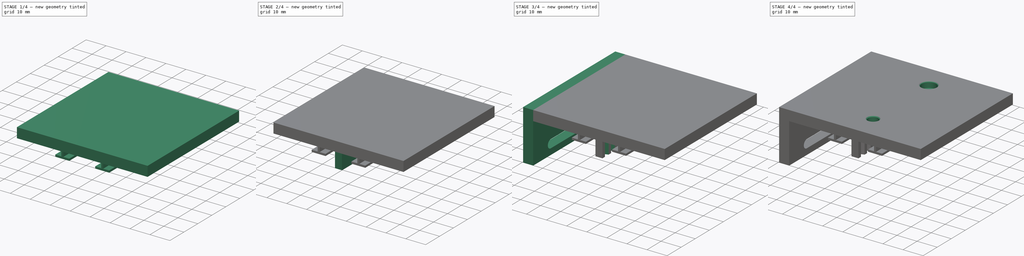
[diagram: build sequence overview — one tinted view per stage of 4, left to right]
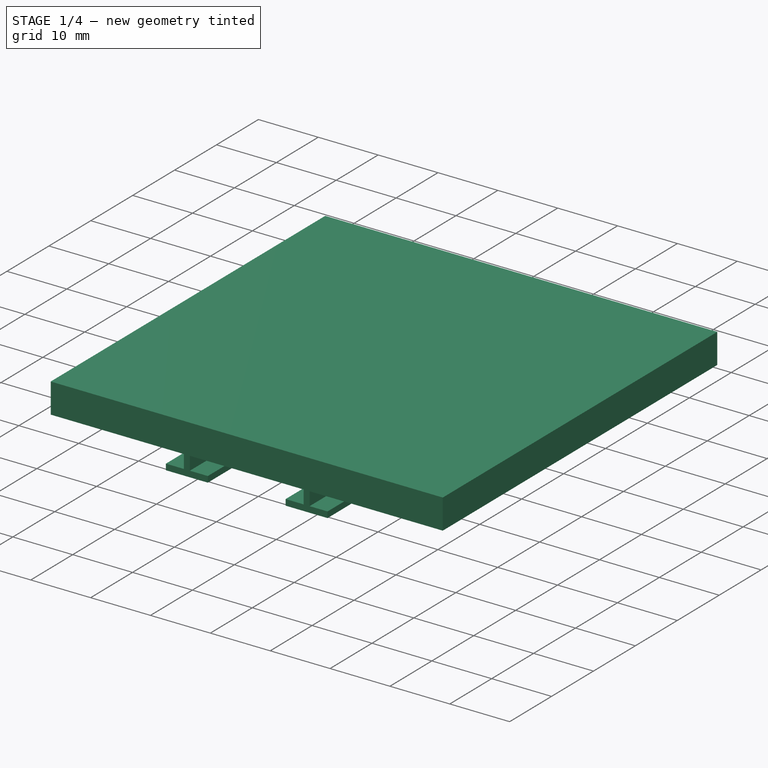
[diagram: stage 1 of 4 — iso view after this stage's code; geometry added in this stage tinted green]
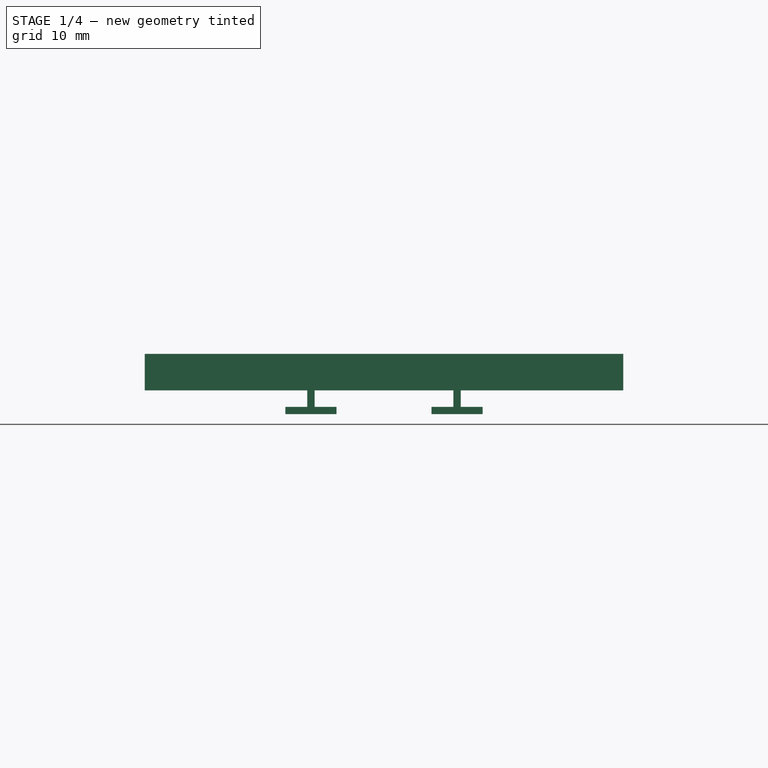
[diagram: stage 1 of 4 — front view after this stage's code; geometry added in this stage tinted green]
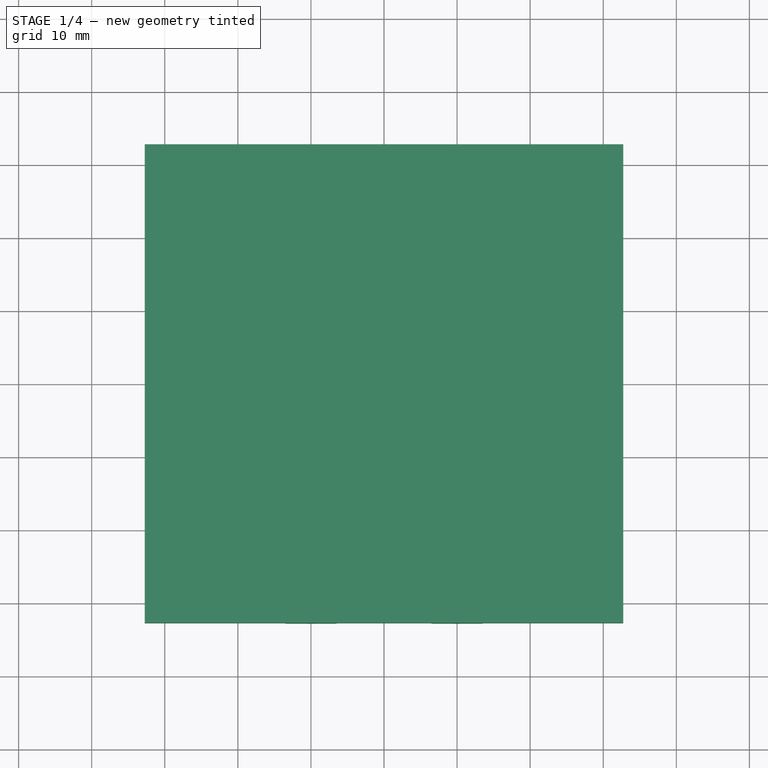
[diagram: stage 1 of 4 — top view after this stage's code; geometry added in this stage tinted green]
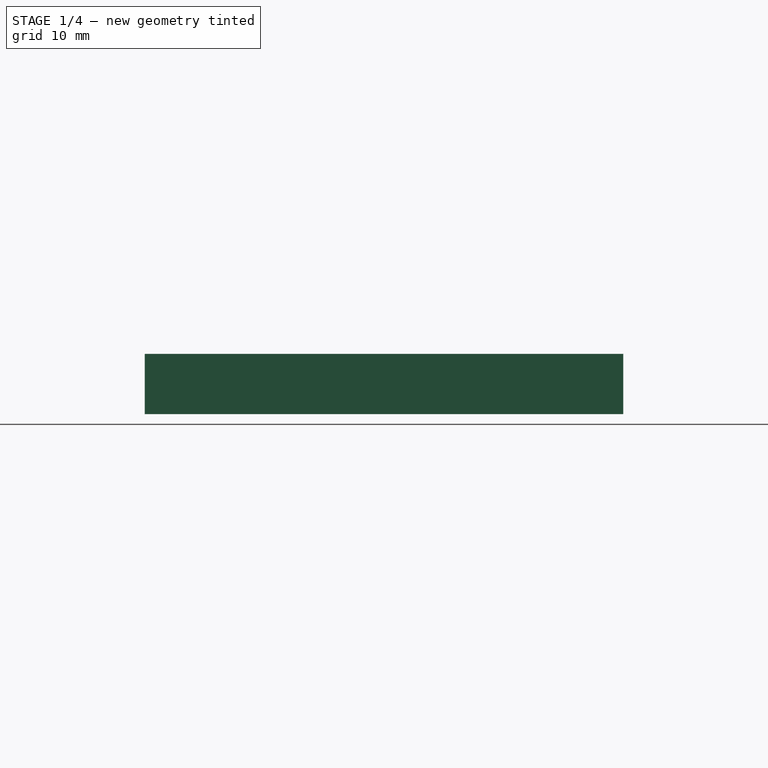
[diagram: stage 1 of 4 — right view after this stage's code; geometry added in this stage tinted green]
FCSTD DOCUMENT  (FreeCAD 0.20R29410 (Git))
Label: Top10mmAdjRevD
License: All rights reserved
LicenseURL: http://en.wikipedia.org/wiki/All_rights_reserved
objects: Sketcher::SketchObject×8, PartDesign::Pad×4, PartDesign::Pocket×3, PartDesign::LinearPattern×1, PartDesign::Chamfer×1, PartDesign::Body×1
note: 26 computed .brp shape members not serialized (recipe doc carries the construction recipe); baked Part::Feature solids carry a one-line shape summary decoded from their .brp

FEATURE [Sketcher::SketchObject] Sketch
  FullyConstrained = true
  MapMode = 5
  Support = -> [XY_Plane]
  sketch-geometry (4):
    g0: LineSegment StartX=-32.75 StartY=32.75 StartZ=0 EndX=32.75 EndY=32.75 EndZ=0
    g1: LineSegment StartX=32.75 StartY=32.75 StartZ=0 EndX=32.75 EndY=-32.75 EndZ=0
    g2: LineSegment StartX=32.75 StartY=-32.75 StartZ=0 EndX=-32.75 EndY=-32.75 EndZ=0
    g3: LineSegment StartX=-32.75 StartY=-32.75 StartZ=0 EndX=-32.75 EndY=32.75 EndZ=0
  constraints (11):
    c: Coincident(g0,g1)
    c: Coincident(g1,g2)
    c: Coincident(g2,g3)
    c: Coincident(g3,g0)
    c: Horizontal(g0)
    c: Horizontal(g2)
    c: Vertical(g1)
    c: Vertical(g3)
    c: Symmetric(g1,g0,g-1)
    c: Equal(g0,g3)
    c: DistanceX(g0,g0) = 65.5
FEATURE [PartDesign::Pad] Pad
  Direction = (0,0,1)
  Length = 5
  Length2 = 10
  Profile = -> Sketch
  ReferenceAxis = -> Sketch [N_Axis]
  Type = 0
FEATURE [Sketcher::SketchObject] Sketch001
  ExternalGeometry = -> [Pad]
  FullyConstrained = true
  MapMode = 5
  Placement = pos=(0,-32.75,0) rot=(1,0,0;1.5708rad)
  Support = -> [Pad]
  sketch-geometry (19):
    g0: LineSegment StartX=-32.75 StartY=0.5 StartZ=0 EndX=32.75 EndY=0.5 EndZ=0
    g1: LineSegment StartX=-10.5 StartY=0.5 StartZ=0 EndX=-10.5 EndY=-2.25 EndZ=0
    g2: LineSegment StartX=-10.5 StartY=-2.25 StartZ=0 EndX=-13.5 EndY=-2.25 EndZ=0
    g3: LineSegment StartX=-13.5 StartY=-2.25 StartZ=0 EndX=-13.5 EndY=-3.25 EndZ=0
    g4: LineSegment StartX=-13.5 StartY=-3.25 StartZ=0 EndX=-6.5 EndY=-3.25 EndZ=0
    g5: LineSegment StartX=-6.5 StartY=-3.25 StartZ=0 EndX=-6.5 EndY=-2.25 EndZ=0
    g6: LineSegment StartX=-6.5 StartY=-2.25 StartZ=0 EndX=-9.5 EndY=-2.25 EndZ=0
    g7: LineSegment StartX=-9.5 StartY=-2.25 StartZ=0 EndX=-9.5 EndY=0.5 EndZ=0
    g8: LineSegment StartX=-9.5 StartY=0.5 StartZ=0 EndX=-10.5 EndY=0.5 EndZ=0
    g9: LineSegment StartX=9.5 StartY=0.5 StartZ=0 EndX=10.5 EndY=0.5 EndZ=0
    g10: LineSegment StartX=10.5 StartY=0.5 StartZ=0 EndX=10.5 EndY=-2.25 EndZ=0
    g11: LineSegment StartX=10.5 StartY=-2.25 StartZ=0 EndX=13.5 EndY=-2.25 EndZ=0
    g12: LineSegment StartX=13.5 StartY=-2.25 StartZ=0 EndX=13.5 EndY=-3.25 EndZ=0
    g13: LineSegment StartX=13.5 StartY=-3.25 StartZ=0 EndX=6.5 EndY=-3.25 EndZ=0
    g14: LineSegment StartX=6.5 StartY=-3.25 StartZ=0 EndX=6.5 EndY=-2.25 EndZ=0
    g15: LineSegment StartX=6.5 StartY=-2.25 StartZ=0 EndX=9.5 EndY=-2.25 EndZ=0
    g16: LineSegment StartX=9.5 StartY=-2.25 StartZ=0 EndX=9.5 EndY=0.5 EndZ=0
    g17: GeomPoint X=-10 Y=0.5 Z=0
    g18: GeomPoint X=-9.5 Y=0 Z=0
  constraints (55):
    c: PointOnObject(g0,g-3)
    c: PointOnObject(g0,g-4)
    c: DistanceY(g-4,g0) = 0.5
    c: PointOnObject(g1,g0)
    c: Vertical(g1)
    c: Coincident(g1,g2)
    c: Horizontal(g2)
    c: Coincident(g2,g3)
    c: Vertical(g3)
    c: Coincident(g3,g4)
    c: Horizontal(g4)
    c: Coincident(g4,g5)
    c: Vertical(g5)
    c: Coincident(g5,g6)
    c: Horizontal(g6)
    c: Coincident(g6,g7)
    c: PointOnObject(g7,g0)
    c: Vertical(g7)
    c: Coincident(g7,g8)
    c: Coincident(g8,g1)
    c: PointOnObject(g9,g0)
    c: PointOnObject(g9,g0)
    c: Coincident(g9,g10)
    c: Vertical(g10)
    c: Coincident(g10,g11)
    c: Horizontal(g11)
    c: Coincident(g11,g12)
    c: Vertical(g12)
    c: Coincident(g12,g13)
    c: Horizontal(g13)
    c: Coincident(g13,g14)
    c: Vertical(g14)
    c: Coincident(g14,g15)
    c: Horizontal(g15)
    c: Coincident(g15,g16)
    c: Coincident(g16,g9)
    c: Vertical(g16)
    c: Equal(g1,g7)
    c: Equal(g7,g16)
    c: Equal(g16,g10)
    c: DistanceY(g1,g1) = 2.75
    c: Equal(g8,g3)
    c: Equal(g5,g14)
    c: Equal(g14,g9)
    c: DistanceX(g8,g8) = 1
    c: Equal(g4,g13)
    c: DistanceX(g4,g4) = 7
    c: Equal(g11,g15)
    c: Equal(g15,g6)
    c: Symmetric(g7,g1,g17)
    c: Symmetric(g7,g9,g-2)
    c: DistanceX(g17,g-1) = 10
    c: PointOnObject(g18,g7)
    c: PointOnObject(g18,g-1)
    c: DistanceY(g6,g18) = 2.25
FEATURE [PartDesign::Pad] Pad001  label="T rails"
  BaseFeature = -> Pad
  Direction = (0,-1,2e-16)
  Length = 65.5
  Length2 = 10
  Profile = -> Sketch001
  ReferenceAxis = -> Sketch001 [N_Axis]
  Reversed = true
  Type = 0
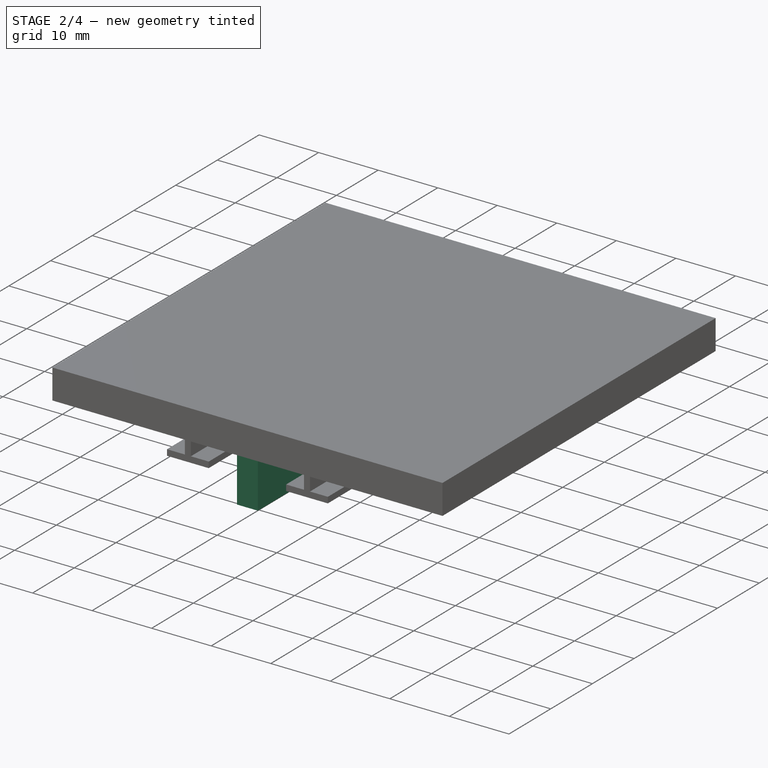
[diagram: stage 2 of 4 — iso view after this stage's code; geometry added in this stage tinted green]
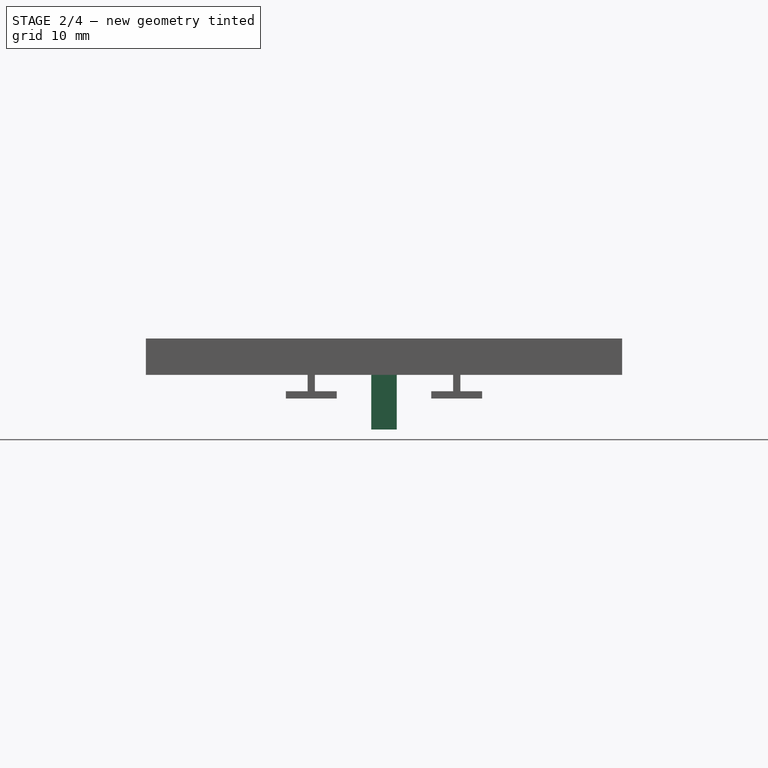
[diagram: stage 2 of 4 — front view after this stage's code; geometry added in this stage tinted green]
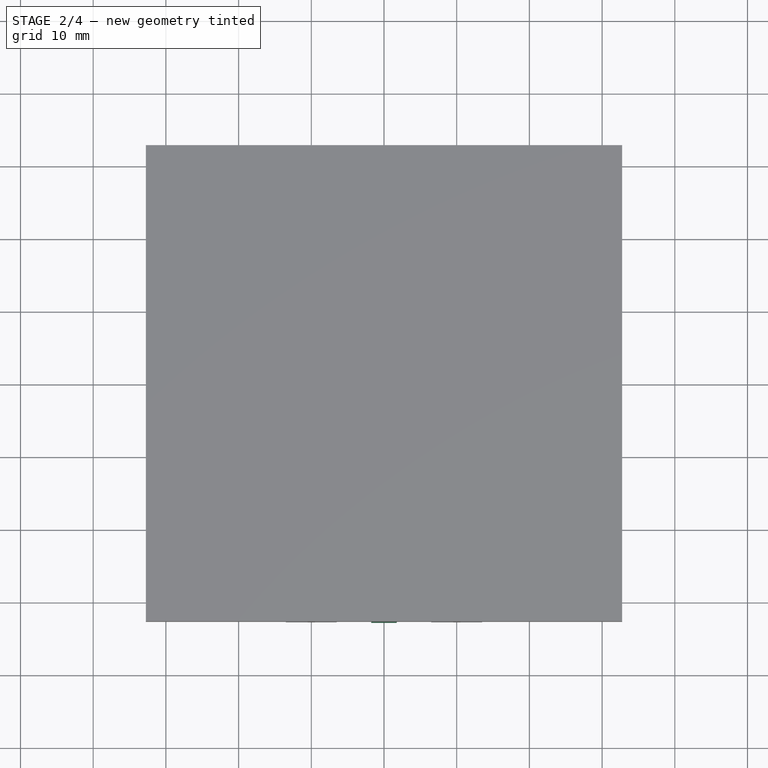
[diagram: stage 2 of 4 — top view after this stage's code; geometry added in this stage tinted green]
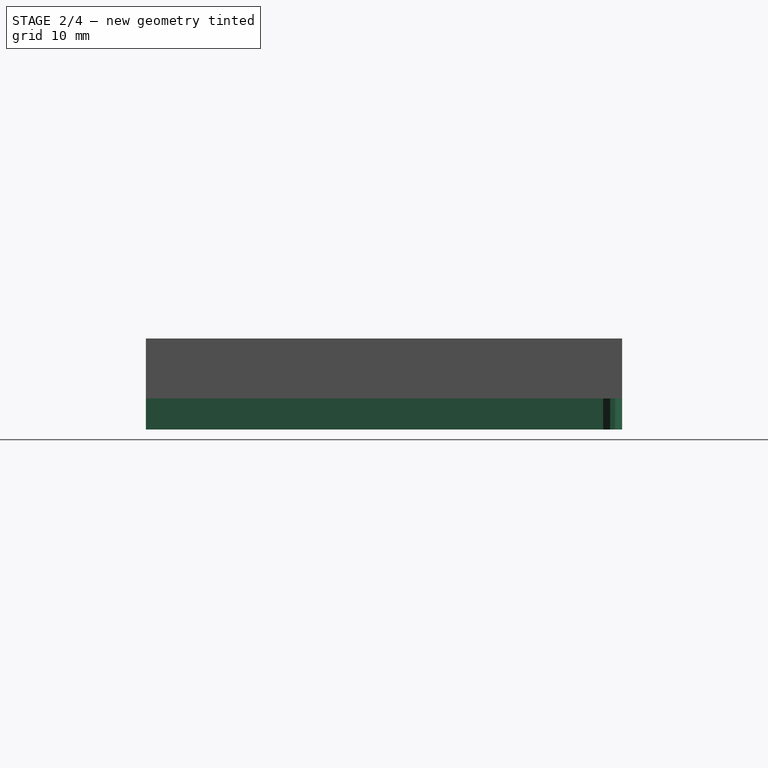
[diagram: stage 2 of 4 — right view after this stage's code; geometry added in this stage tinted green]
FEATURE [Sketcher::SketchObject] Sketch002
  ExternalGeometry = -> [Pad001]
  FullyConstrained = true
  MapMode = 5
  Placement = pos=(0,32.75,0) rot=(0,0.707107,0.707107;3.14159rad)
  Support = -> [Pad001]
  sketch-geometry (5):
    g0: LineSegment StartX=-32.75 StartY=0.5 StartZ=0 EndX=32.75 EndY=0.5 EndZ=0
    g1: LineSegment StartX=1.75 StartY=0.5 StartZ=0 EndX=-1.75 EndY=0.5 EndZ=0
    g2: LineSegment StartX=-1.75 StartY=0.5 StartZ=0 EndX=-1.75 EndY=-7.5 EndZ=0
    g3: LineSegment StartX=-1.75 StartY=-7.5 StartZ=0 EndX=1.75 EndY=-7.5 EndZ=0
    g4: LineSegment StartX=1.75 StartY=-7.5 StartZ=0 EndX=1.75 EndY=0.5 EndZ=0
  constraints (15):
    c: PointOnObject(g0,g-3)
    c: PointOnObject(g0,g-4)
    c: Horizontal(g0)
    c: DistanceY(g-4,g0) = 0.5
    c: PointOnObject(g1,g0)
    c: Coincident(g1,g2)
    c: Vertical(g2)
    c: Coincident(g2,g3)
    c: Horizontal(g3)
    c: Coincident(g3,g4)
    c: Coincident(g4,g1)
    c: Vertical(g4)
    c: Symmetric(g1,g1,g-2)
    c: DistanceY(g4,g4) = 8
    c: DistanceX(g3,g3) = 3.5
FEATURE [PartDesign::Pad] Pad002  label="CenterTeeth"
  BaseFeature = -> Pad001
  Direction = (0,1,-2e-16)
  Length = 65.5
  Length2 = 10
  Profile = -> Sketch002
  ReferenceAxis = -> Sketch002 [N_Axis]
  Reversed = true
  Type = 0
FEATURE [Sketcher::SketchObject] Sketch003
  ExternalGeometry = -> [Pad002]
  FullyConstrained = true
  MapMode = 5
  Placement = pos=(0,-1.7e-15,-7.5) rot=(1,0,0;3.14159rad)
  Support = -> [Pad002]
  sketch-geometry (6):
    g0: LineSegment StartX=1.75 StartY=-32.75 StartZ=0 EndX=-0.98 EndY=-31.795 EndZ=0
    g1: LineSegment StartX=-0.98 StartY=-31.095 StartZ=0 EndX=1.75 EndY=-30.14 EndZ=0
    g2: LineSegment StartX=1.75 StartY=-30.14 StartZ=0 EndX=1.75 EndY=-32.75 EndZ=0
    g3: GeomPoint X=-0.98 Y=32.75 Z=0
    g4: LineSegment StartX=-0.98 StartY=32.75 StartZ=0 EndX=-0.98 EndY=-32.75 EndZ=0
    g5: LineSegment StartX=-0.98 StartY=-31.095 StartZ=0 EndX=-0.98 EndY=-31.795 EndZ=0
  constraints (16):
    c: PointOnObject(g3,g-4)
    c: DistanceX(g3,g-4) = 2.73
    c: Coincident(g4,g3)
    c: PointOnObject(g4,g-5)
    c: Vertical(g4)
    c: PointOnObject(g0,g4)
    c: PointOnObject(g1,g4)
    c: Coincident(g5,g1)
    c: Coincident(g5,g0)
    c: DistanceY(g5,g5) = 0.7
    c: DistanceY(g0,g1) = 2.61
    c: Coincident(g2,g1)
    c: Coincident(g2,g0)
    c: Equal(g1,g0)
    c: PointOnObject(g1,g-3)
    c: Coincident(g0,g-5)
FEATURE [PartDesign::Pocket] Pocket  label="Teeth"
  BaseFeature = -> Pad002
  Direction = (0,2e-16,1)
  Length = 7
  Length2 = 5
  Profile = -> Sketch003
  ReferenceAxis = -> Sketch003 [N_Axis]
  Type = 0
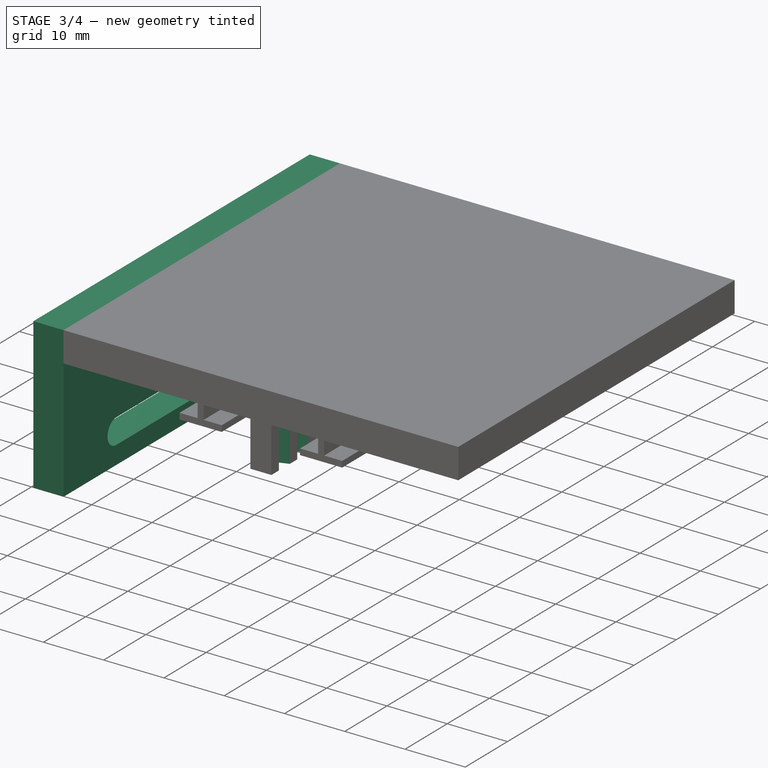
[diagram: stage 3 of 4 — iso view after this stage's code; geometry added in this stage tinted green]
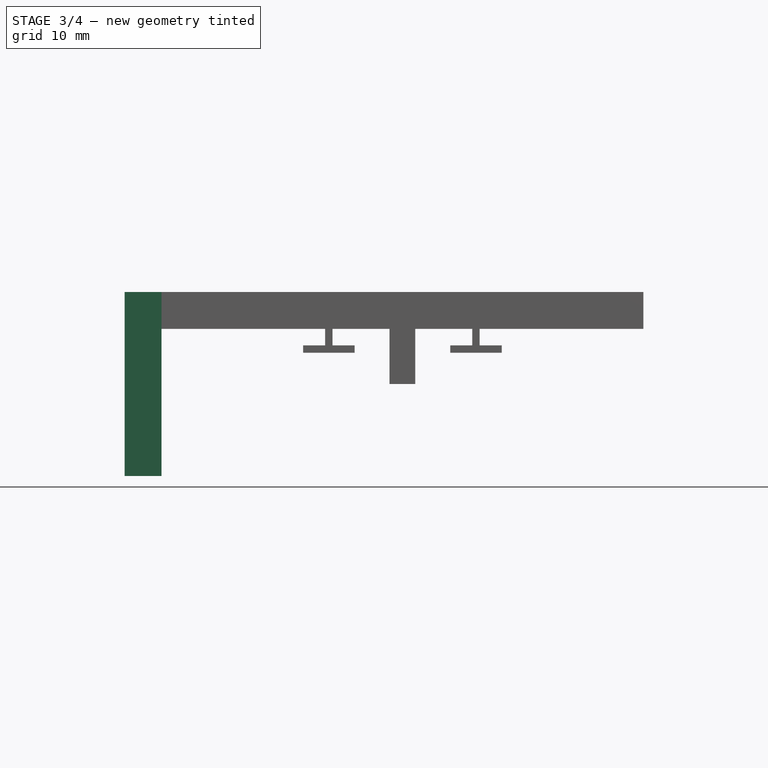
[diagram: stage 3 of 4 — front view after this stage's code; geometry added in this stage tinted green]
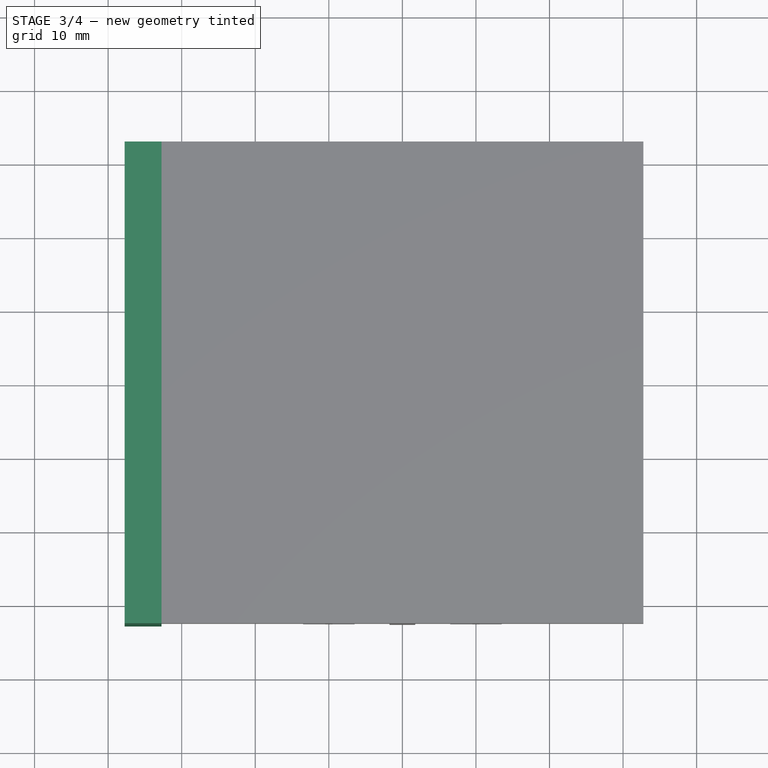
[diagram: stage 3 of 4 — top view after this stage's code; geometry added in this stage tinted green]
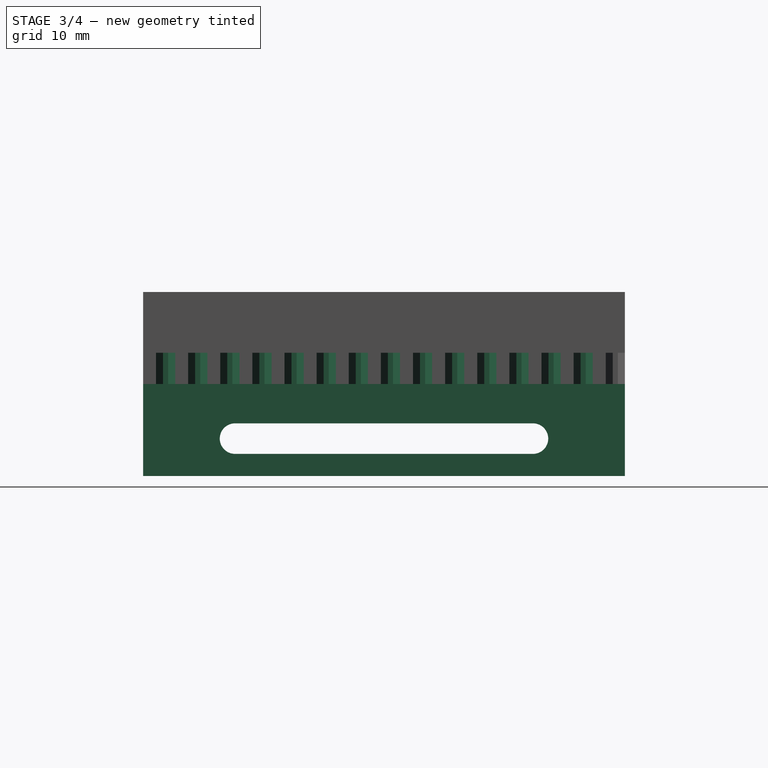
[diagram: stage 3 of 4 — right view after this stage's code; geometry added in this stage tinted green]
FEATURE [PartDesign::LinearPattern] LinearPattern
  BaseFeature = -> Pocket
  Direction = -> Sketch003 [V_Axis]
  Length = 65.5
  Occurrences = 16
  Originals = -> [Pocket]
FEATURE [Sketcher::SketchObject] Sketch004
  ExternalGeometry = -> [LinearPattern]
  FullyConstrained = true
  MapMode = 5
  Placement = pos=(0,-1.7e-15,-7.5) rot=(1,0,0;3.14159rad)
  Support = -> [LinearPattern]
  constraints (1):
    c: DistanceY(g-3,g-3) = 1.75667
FEATURE [Sketcher::SketchObject] Sketch005
  ExternalGeometry = -> [LinearPattern]
  FullyConstrained = true
  MapMode = 5
  Placement = pos=(-32.75,0,0) rot=(0.57735,-0.57735,-0.57735;2.0944rad)
  Support = -> [LinearPattern]
  sketch-geometry (4):
    g0: LineSegment StartX=-32.75 StartY=5 StartZ=0 EndX=32.75 EndY=5 EndZ=0
    g1: LineSegment StartX=32.75 StartY=5 StartZ=0 EndX=32.75 EndY=-20 EndZ=0
    g2: LineSegment StartX=32.75 StartY=-20 StartZ=0 EndX=-32.75 EndY=-20 EndZ=0
    g3: LineSegment StartX=-32.75 StartY=-20 StartZ=0 EndX=-32.75 EndY=5 EndZ=0
  constraints (10):
    c: Coincident(g0,g1)
    c: Coincident(g1,g2)
    c: Coincident(g2,g3)
    c: Coincident(g3,g0)
    c: Horizontal(g2)
    c: Vertical(g1)
    c: Vertical(g3)
    c: Coincident(g0,g-3)
    c: Coincident(g0,g-3)
    c: DistanceY(g3,g3) = 25
FEATURE [PartDesign::Pad] Pad003  label="EndExtensionPad"
  BaseFeature = -> LinearPattern
  Direction = (-1,0,0)
  Length = 5
  Length2 = 10
  Profile = -> Sketch005
  ReferenceAxis = -> Sketch005 [N_Axis]
  Type = 0
FEATURE [Sketcher::SketchObject] Sketch006
  ExternalGeometry = -> [Pad003]
  FullyConstrained = true
  MapMode = 5
  Placement = pos=(-37.75,0,0) rot=(0.57735,-0.57735,-0.57735;2.0944rad)
  Support = -> [Pad003]
  sketch-geometry (4):
    g0: ArcOfCircle CenterX=-20.25 CenterY=-14.925 CenterZ=0 NormalX=0 NormalY=0 NormalZ=1 AngleXU=0 Radius=2.075 StartAngle=1.5708 EndAngle=4.71239
    g1: ArcOfCircle CenterX=20.25 CenterY=-14.925 CenterZ=0 NormalX=0 NormalY=0 NormalZ=1 AngleXU=0 Radius=2.075 StartAngle=4.71239 EndAngle=7.85398
    g2: LineSegment StartX=-20.25 StartY=-17 StartZ=0 EndX=20.25 EndY=-17 EndZ=0
    g3: LineSegment StartX=20.25 StartY=-12.85 StartZ=0 EndX=-20.25 EndY=-12.85 EndZ=0
  constraints (10):
    c: Tangent(g0,g2) = -1.5708
    c: Tangent(g2,g1) = -1.5708
    c: Tangent(g1,g3) = -1.5708
    c: Tangent(g3,g0) = -1.5708
    c: Equal(g0,g1)
    c: Symmetric(g0,g1,g-2)
    c: DistanceY(g1,g1) = 4.15
    c: DistanceY(g-3,g0) = 3
    c: DistanceX(g-3,g0) = 12.5
    c: DistanceY(g-3,g0) = 5.075
FEATURE [PartDesign::Pocket] Pocket001  label="SlotM4Bolt"
  BaseFeature = -> Pad003
  Direction = (1,0,0)
  Length = 5
  Length2 = 5
  Profile = -> Sketch006
  ReferenceAxis = -> Sketch006 [N_Axis]
  Type = 0
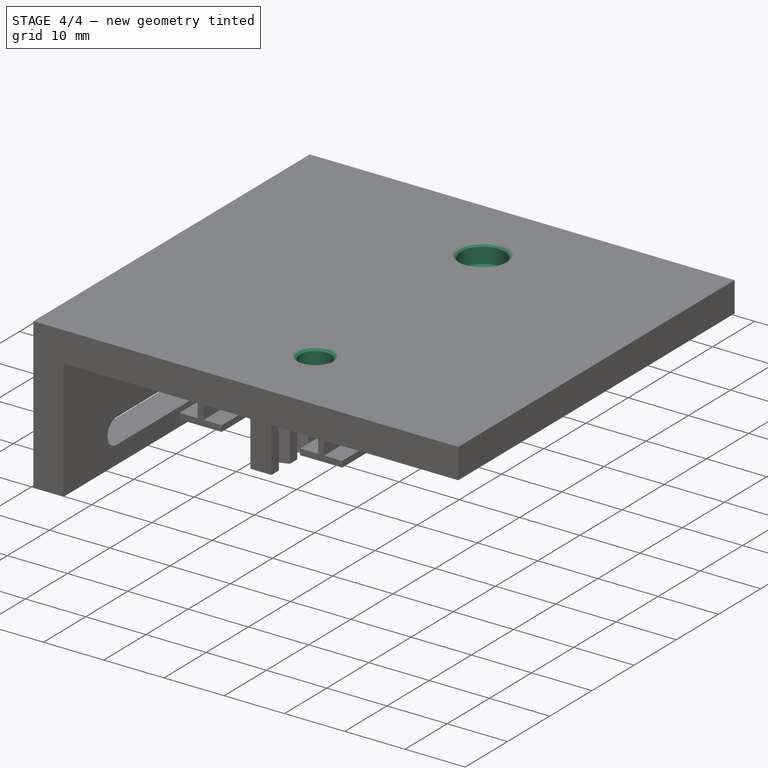
[diagram: stage 4 of 4 — iso view after this stage's code; geometry added in this stage tinted green]
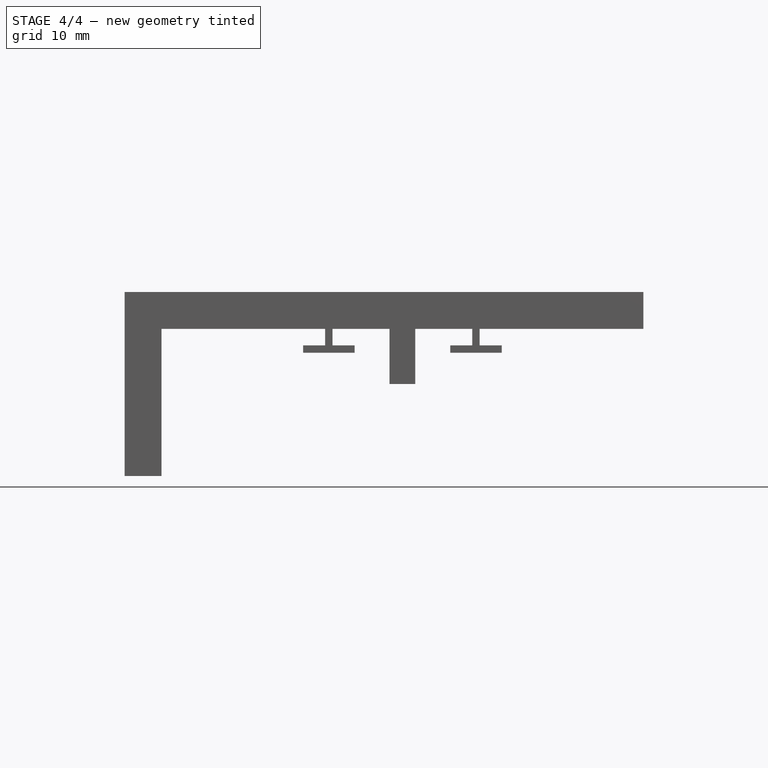
[diagram: stage 4 of 4 — front view after this stage's code; geometry added in this stage tinted green]
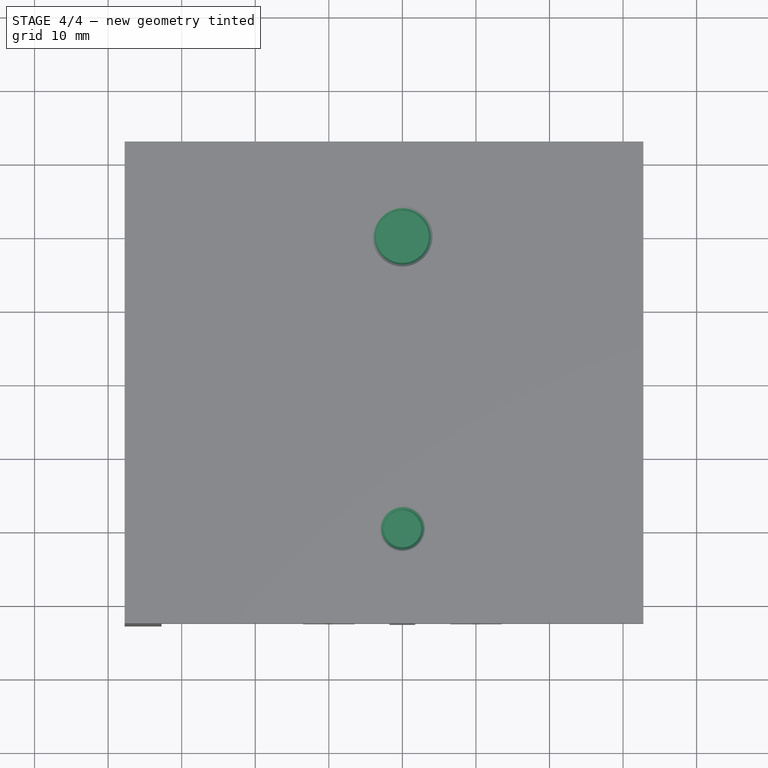
[diagram: stage 4 of 4 — top view after this stage's code; geometry added in this stage tinted green]
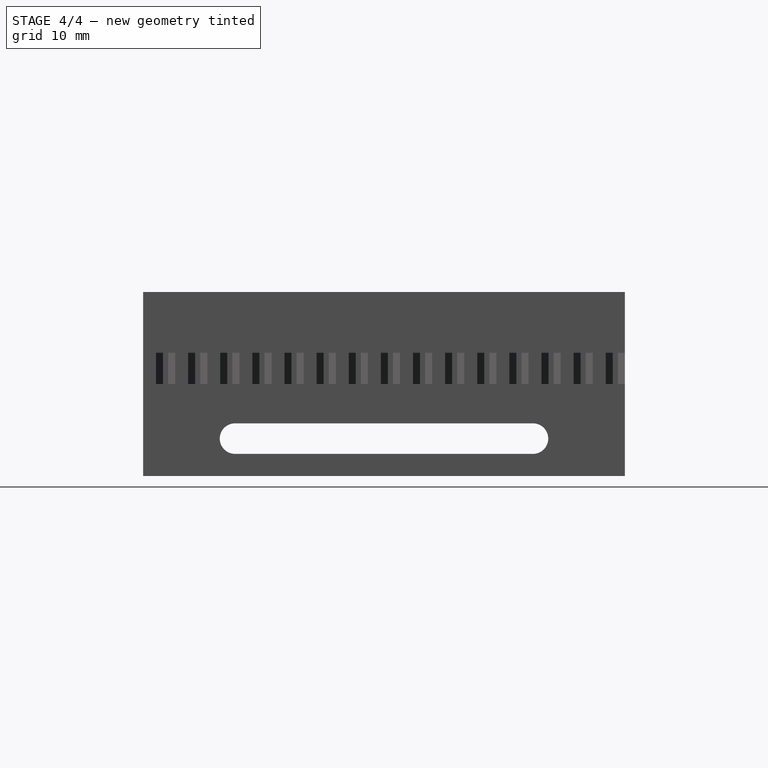
[diagram: stage 4 of 4 — right view after this stage's code; geometry added in this stage tinted green]
FEATURE [Sketcher::SketchObject] Sketch007
  ExternalGeometry = -> [Pocket001]
  FullyConstrained = true
  MapMode = 5
  Placement = pos=(0,0,5) rot=(0,0,1;0rad)
  Support = -> [Pocket001]
  sketch-geometry (2):
    g0: Circle CenterX=0 CenterY=19.85 CenterZ=0 NormalX=0 NormalY=0 NormalZ=1 AngleXU=0 Radius=3.6
    g1: Circle CenterX=0 CenterY=-19.85 CenterZ=0 NormalX=0 NormalY=0 NormalZ=1 AngleXU=0 Radius=2.55
  constraints (6):
    c: PointOnObject(g0,g-2)
    c: PointOnObject(g1,g-2)
    c: Diameter(g1) = 5.1
    c: Diameter(g0) = 7.2
    c: DistanceY(g0,g-3) = 12.9
    c: DistanceY(g1,g-3) = 52.6
FEATURE [PartDesign::Pocket] Pocket002
  BaseFeature = -> Pocket001
  Direction = (0,0,-1)
  Length = 3.1
  Length2 = 5
  Profile = -> Sketch007
  ReferenceAxis = -> Sketch007 [N_Axis]
  Type = 0
FEATURE [PartDesign::Chamfer] Chamfer
  Angle = 45
  Base = -> Pocket002 [Edge36,Edge37]
  BaseFeature = -> Pocket002
  ChamferType = 0
  FlipDirection = false
  Size = 0.5
  Size2 = 1
  SupportTransform = false
  UseAllEdges = false
FEATURE [PartDesign::Body] Body
  Group = -> [Sketch,Pad,Sketch001,Pad001,Sketch002,Pad002,Sketch003,Pocket,LinearPattern,Sketch004,Sketch005,Pad003,Sketch006,Pocket001,Sketch007,Pocket002,Chamfer]
  Origin = -> Origin
  Tip = -> Chamfer
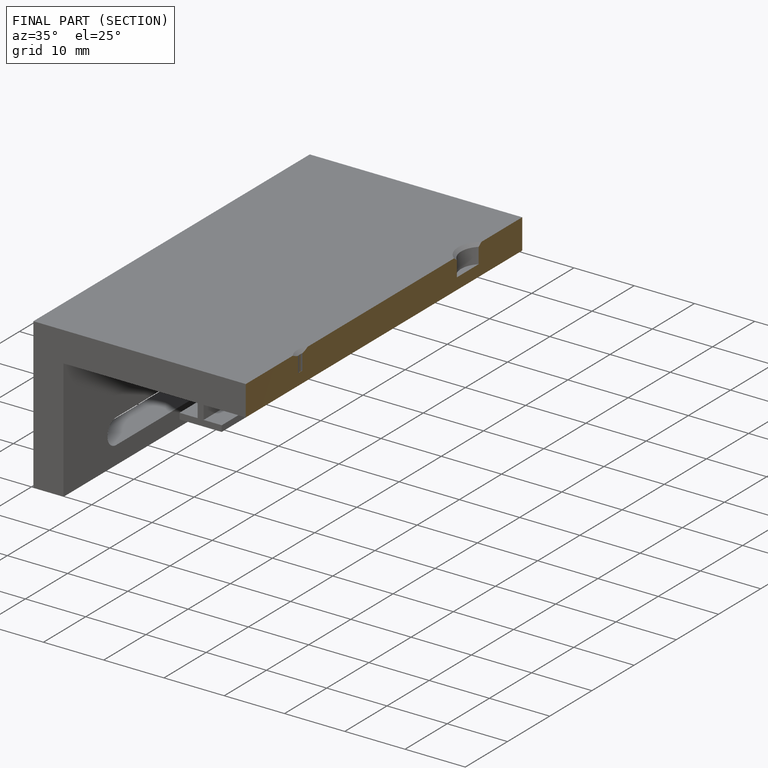
[diagram: finished part — half-section view (interior)]
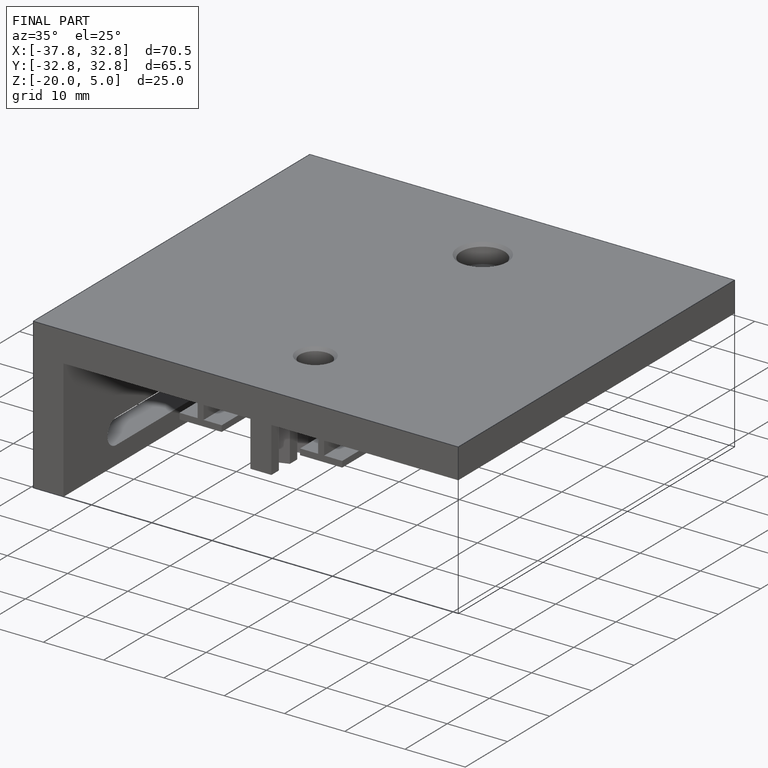
[diagram: finished part — iso view with bounding-box wireframe]
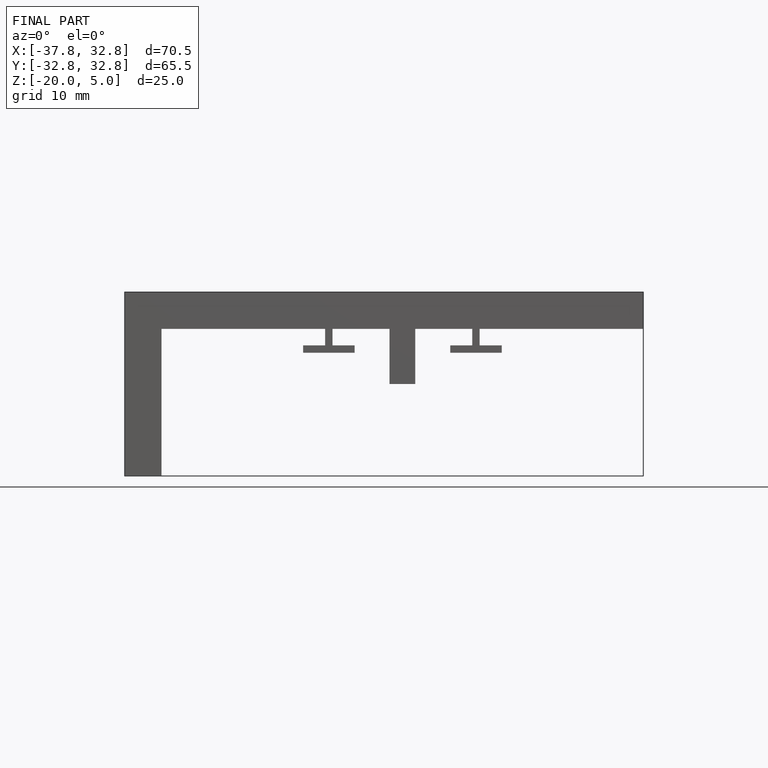
[diagram: finished part — front view with bounding-box wireframe]
